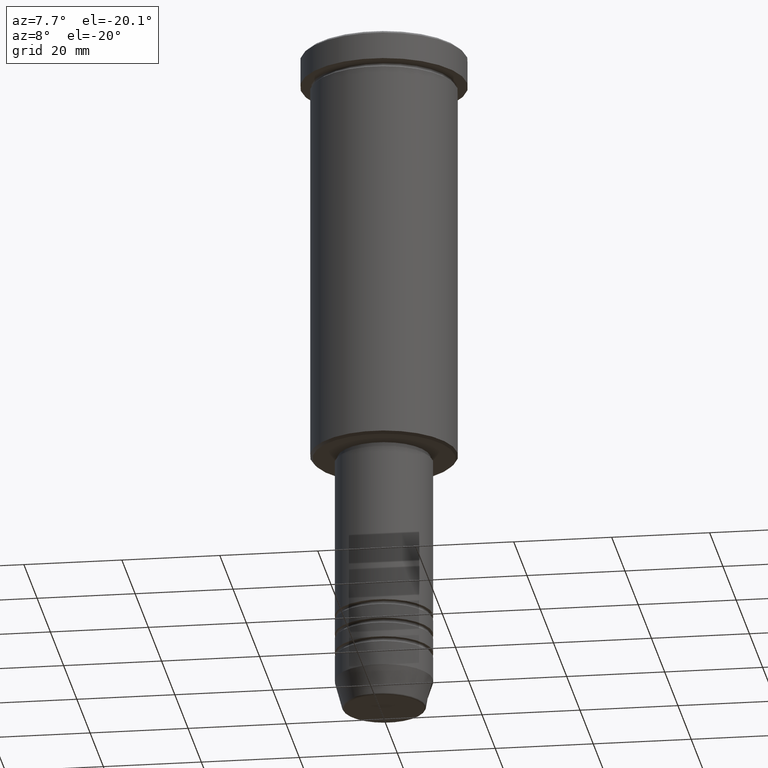
[diagram: clean part render]
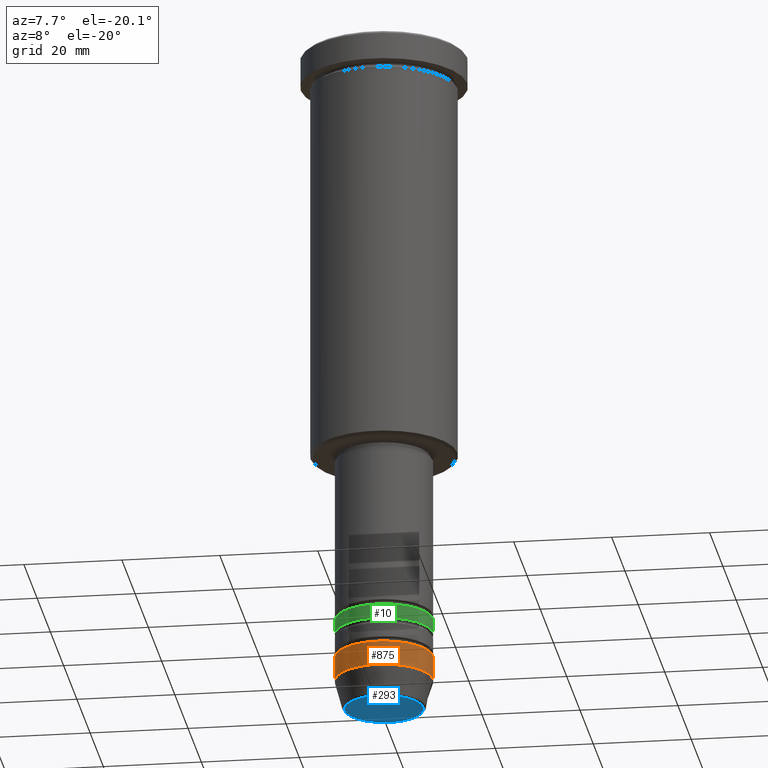
[diagram: same view with three faces highlighted in distinct colors, each labeled with its STEP entity id]
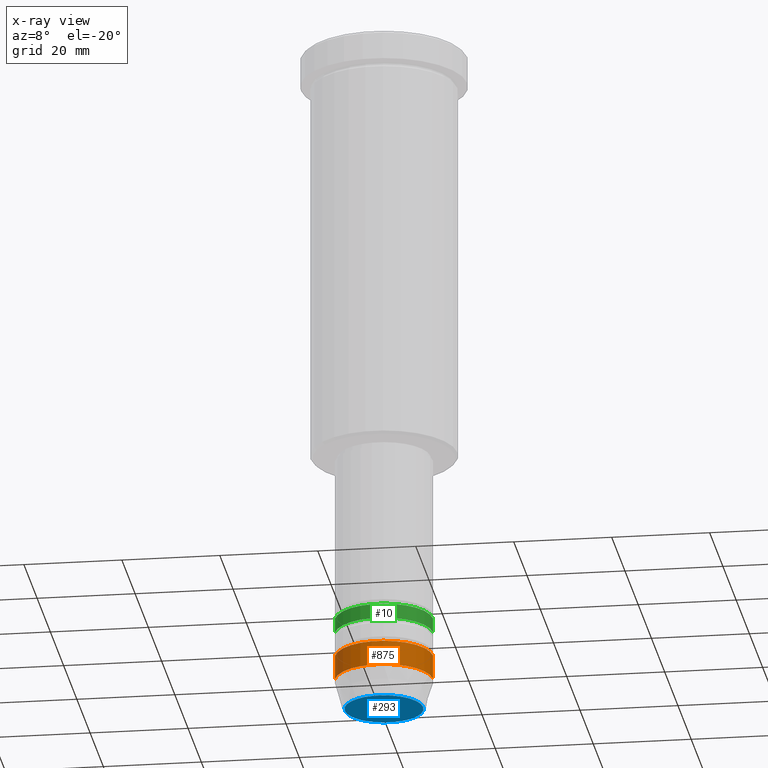
[diagram: x-ray of the same camera — body ghosted, the three highlighted faces saturated]
A machine part, auxiliary view with three faces highlighted in distinct colors.
The next image is the same camera in x-ray (body ghosted, the three faces saturated) — at least one of them is partly hidden behind the body in this view.
Their STEP definitions:

[orange] entity #875 — the highlighted cylindrical surface (partial cylindrical patch) has radius 10 mm, axis along (-0, -0, 1).
#13 = CIRCLE ( 'NONE', #701, 10.00000000000000178 ) ;
#69 = DIRECTION ( 'NONE',  ( -0.000000000000000000, -0.000000000000000000, 1.000000000000000000 ) ) ;
#78 = VERTEX_POINT ( 'NONE', #139 ) ;
#96 = VECTOR ( 'NONE', #1078, 1000.000000000000000 ) ;
#107 = CARTESIAN_POINT ( 'NONE',  ( -10.00000000000000000, 1.224646799147353256E-15, -129.0000000000000000 ) ) ;
#120 = EDGE_CURVE ( 'NONE', #315, #78, #211, .T. ) ;
#139 = CARTESIAN_POINT ( 'NONE',  ( 10.00000000000000000, 0.000000000000000000, -129.0000000000000000 ) ) ;
#211 = CIRCLE ( 'NONE', #393, 10.00000000000000000 ) ;
#285 = EDGE_CURVE ( 'NONE', #657, #78, #518, .T. ) ;
#315 = VERTEX_POINT ( 'NONE', #107 ) ;
#327 = ORIENTED_EDGE ( 'NONE', *, *, #285, .T. ) ;
#342 = DIRECTION ( 'NONE',  ( 1.000000000000000000, 0.000000000000000000, 0.000000000000000000 ) ) ;
#354 = CYLINDRICAL_SURFACE ( 'NONE', #483, 10.00000000000000178 ) ;
#390 = DIRECTION ( 'NONE',  ( -0.000000000000000000, -0.000000000000000000, 1.000000000000000000 ) ) ;
#393 = AXIS2_PLACEMENT_3D ( 'NONE', #422, #390, #785 ) ;
#422 = CARTESIAN_POINT ( 'NONE',  ( 0.000000000000000000, 0.000000000000000000, -129.0000000000000000 ) ) ;
#483 = AXIS2_PLACEMENT_3D ( 'NONE', #799, #826, #342 ) ;
#518 = LINE ( 'NONE', #1146, #96 ) ;
#607 = ORIENTED_EDGE ( 'NONE', *, *, #850, .T. ) ;
#615 = CARTESIAN_POINT ( 'NONE',  ( -10.00000000000000178, 1.224646799147353454E-15, -134.0000000000000000 ) ) ;
#657 = VERTEX_POINT ( 'NONE', #866 ) ;
#664 = VECTOR ( 'NONE', #1145, 1000.000000000000000 ) ;
#701 = AXIS2_PLACEMENT_3D ( 'NONE', #816, #69, #1055 ) ;
#785 = DIRECTION ( 'NONE',  ( 1.000000000000000000, 0.000000000000000000, 0.000000000000000000 ) ) ;
#799 = CARTESIAN_POINT ( 'NONE',  ( 0.000000000000000000, 0.000000000000000000, 0.000000000000000000 ) ) ;
#816 = CARTESIAN_POINT ( 'NONE',  ( 0.000000000000000000, 0.000000000000000000, -134.0000000000000000 ) ) ;
#826 = DIRECTION ( 'NONE',  ( -0.000000000000000000, -0.000000000000000000, 1.000000000000000000 ) ) ;
#843 = VERTEX_POINT ( 'NONE', #615 ) ;
#850 = EDGE_CURVE ( 'NONE', #843, #657, #13, .T. ) ;
#853 = CARTESIAN_POINT ( 'NONE',  ( -10.00000000000000178, 1.224646799147353454E-15, 0.000000000000000000 ) ) ;
#866 = CARTESIAN_POINT ( 'NONE',  ( 10.00000000000000178, 0.000000000000000000, -134.0000000000000000 ) ) ;
#875 = ADVANCED_FACE ( 'NONE', ( #897 ), #354, .T. ) ;
#897 = FACE_OUTER_BOUND ( 'NONE', #1135, .T. ) ;
#984 = ORIENTED_EDGE ( 'NONE', *, *, #1168, .F. ) ;
#1030 = LINE ( 'NONE', #853, #664 ) ;
#1055 = DIRECTION ( 'NONE',  ( 1.000000000000000000, 0.000000000000000000, 0.000000000000000000 ) ) ;
#1078 = DIRECTION ( 'NONE',  ( -0.000000000000000000, -0.000000000000000000, 1.000000000000000000 ) ) ;
#1135 = EDGE_LOOP ( 'NONE', ( #984, #607, #327, #1137 ) ) ;
#1137 = ORIENTED_EDGE ( 'NONE', *, *, #120, .F. ) ;
#1145 = DIRECTION ( 'NONE',  ( -0.000000000000000000, -0.000000000000000000, 1.000000000000000000 ) ) ;
#1146 = CARTESIAN_POINT ( 'NONE',  ( 10.00000000000000178, 0.000000000000000000, 0.000000000000000000 ) ) ;
#1168 = EDGE_CURVE ( 'NONE', #843, #315, #1030, .T. ) ;

[blue] entity #293 — the highlighted planar face has unit normal (0, -0, 1).
#87 = AXIS2_PLACEMENT_3D ( 'NONE', #552, #660, #458 ) ;
#244 = PLANE ( 'NONE',  #952 ) ;
#274 = CARTESIAN_POINT ( 'NONE',  ( 0.000000000000000000, 0.000000000000000000, -140.0000000000000000 ) ) ;
#293 = ADVANCED_FACE ( 'NONE', ( #1064 ), #244, .F. ) ;
#303 = ORIENTED_EDGE ( 'NONE', *, *, #574, .T. ) ;
#328 = CIRCLE ( 'NONE', #1180, 8.008641351423783306 ) ;
#331 = VERTEX_POINT ( 'NONE', #728 ) ;
#372 = CARTESIAN_POINT ( 'NONE',  ( -8.008641351423783306, 1.010348648938493566E-15, -140.0000000000000000 ) ) ;
#431 = DIRECTION ( 'NONE',  ( 1.000000000000000000, 0.000000000000000000, 0.000000000000000000 ) ) ;
#458 = DIRECTION ( 'NONE',  ( 1.000000000000000000, 0.000000000000000000, 0.000000000000000000 ) ) ;
#552 = CARTESIAN_POINT ( 'NONE',  ( 0.000000000000000000, 0.000000000000000000, -140.0000000000000000 ) ) ;
#563 = DIRECTION ( 'NONE',  ( 1.000000000000000000, 0.000000000000000000, 0.000000000000000000 ) ) ;
#574 = EDGE_CURVE ( 'NONE', #331, #631, #328, .T. ) ;
#588 = EDGE_LOOP ( 'NONE', ( #303, #804 ) ) ;
#631 = VERTEX_POINT ( 'NONE', #372 ) ;
#660 = DIRECTION ( 'NONE',  ( 0.000000000000000000, 0.000000000000000000, -1.000000000000000000 ) ) ;
#715 = DIRECTION ( 'NONE',  ( 0.000000000000000000, 0.000000000000000000, -1.000000000000000000 ) ) ;
#726 = CIRCLE ( 'NONE', #87, 8.008641351423783306 ) ;
#728 = CARTESIAN_POINT ( 'NONE',  ( 8.008641351423783306, 0.000000000000000000, -140.0000000000000000 ) ) ;
#804 = ORIENTED_EDGE ( 'NONE', *, *, #1039, .T. ) ;
#952 = AXIS2_PLACEMENT_3D ( 'NONE', #274, #988, #431 ) ;
#988 = DIRECTION ( 'NONE',  ( 0.000000000000000000, -0.000000000000000000, 1.000000000000000000 ) ) ;
#1039 = EDGE_CURVE ( 'NONE', #631, #331, #726, .T. ) ;
#1049 = CARTESIAN_POINT ( 'NONE',  ( 0.000000000000000000, 0.000000000000000000, -140.0000000000000000 ) ) ;
#1064 = FACE_OUTER_BOUND ( 'NONE', #588, .T. ) ;
#1180 = AXIS2_PLACEMENT_3D ( 'NONE', #1049, #715, #563 ) ;

[green] entity #10 — the highlighted cylindrical surface (partial cylindrical patch) has radius 10 mm, axis along (-0, -0, 1).
#10 = ADVANCED_FACE ( 'NONE', ( #1165 ), #617, .T. ) ;
#23 = DIRECTION ( 'NONE',  ( 1.000000000000000000, 0.000000000000000000, 0.000000000000000000 ) ) ;
#104 = DIRECTION ( 'NONE',  ( 1.000000000000000000, 0.000000000000000000, 0.000000000000000000 ) ) ;
#122 = DIRECTION ( 'NONE',  ( -0.000000000000000000, -0.000000000000000000, 1.000000000000000000 ) ) ;
#157 = DIRECTION ( 'NONE',  ( -0.000000000000000000, -0.000000000000000000, 1.000000000000000000 ) ) ;
#196 = LINE ( 'NONE', #277, #561 ) ;
#202 = DIRECTION ( 'NONE',  ( -0.000000000000000000, -0.000000000000000000, 1.000000000000000000 ) ) ;
#223 = VERTEX_POINT ( 'NONE', #781 ) ;
#277 = CARTESIAN_POINT ( 'NONE',  ( 10.00000000000000178, 0.000000000000000000, 0.000000000000000000 ) ) ;
#292 = DIRECTION ( 'NONE',  ( -0.000000000000000000, -0.000000000000000000, 1.000000000000000000 ) ) ;
#307 = CARTESIAN_POINT ( 'NONE',  ( 0.000000000000000000, 0.000000000000000000, -124.0000000000000000 ) ) ;
#355 = ORIENTED_EDGE ( 'NONE', *, *, #1023, .T. ) ;
#383 = VERTEX_POINT ( 'NONE', #566 ) ;
#435 = VERTEX_POINT ( 'NONE', #692 ) ;
#543 = EDGE_CURVE ( 'NONE', #383, #223, #822, .T. ) ;
#561 = VECTOR ( 'NONE', #202, 1000.000000000000000 ) ;
#566 = CARTESIAN_POINT ( 'NONE',  ( -10.00000000000000178, 1.224646799147353454E-15, -124.0000000000000000 ) ) ;
#578 = CIRCLE ( 'NONE', #846, 10.00000000000000000 ) ;
#617 = CYLINDRICAL_SURFACE ( 'NONE', #1042, 10.00000000000000178 ) ;
#637 = EDGE_CURVE ( 'NONE', #1096, #435, #578, .T. ) ;
#692 = CARTESIAN_POINT ( 'NONE',  ( 10.00000000000000000, 0.000000000000000000, -121.0000000000000000 ) ) ;
#713 = ORIENTED_EDGE ( 'NONE', *, *, #637, .F. ) ;
#733 = DIRECTION ( 'NONE',  ( -0.000000000000000000, -0.000000000000000000, 1.000000000000000000 ) ) ;
#771 = ORIENTED_EDGE ( 'NONE', *, *, #543, .T. ) ;
#781 = CARTESIAN_POINT ( 'NONE',  ( 10.00000000000000178, 0.000000000000000000, -124.0000000000000000 ) ) ;
#802 = EDGE_CURVE ( 'NONE', #383, #1096, #901, .T. ) ;
#809 = CARTESIAN_POINT ( 'NONE',  ( -10.00000000000000178, 1.224646799147353454E-15, 0.000000000000000000 ) ) ;
#822 = CIRCLE ( 'NONE', #1028, 10.00000000000000178 ) ;
#846 = AXIS2_PLACEMENT_3D ( 'NONE', #1095, #292, #104 ) ;
#861 = ORIENTED_EDGE ( 'NONE', *, *, #802, .F. ) ;
#901 = LINE ( 'NONE', #809, #1046 ) ;
#922 = CARTESIAN_POINT ( 'NONE',  ( -10.00000000000000000, 1.224646799147353256E-15, -121.0000000000000000 ) ) ;
#967 = CARTESIAN_POINT ( 'NONE',  ( 0.000000000000000000, 0.000000000000000000, 0.000000000000000000 ) ) ;
#980 = DIRECTION ( 'NONE',  ( 1.000000000000000000, 0.000000000000000000, 0.000000000000000000 ) ) ;
#1023 = EDGE_CURVE ( 'NONE', #223, #435, #196, .T. ) ;
#1028 = AXIS2_PLACEMENT_3D ( 'NONE', #307, #122, #23 ) ;
#1042 = AXIS2_PLACEMENT_3D ( 'NONE', #967, #157, #980 ) ;
#1046 = VECTOR ( 'NONE', #733, 1000.000000000000000 ) ;
#1095 = CARTESIAN_POINT ( 'NONE',  ( 0.000000000000000000, 0.000000000000000000, -121.0000000000000000 ) ) ;
#1096 = VERTEX_POINT ( 'NONE', #922 ) ;
#1107 = EDGE_LOOP ( 'NONE', ( #861, #771, #355, #713 ) ) ;
#1165 = FACE_OUTER_BOUND ( 'NONE', #1107, .T. ) ;